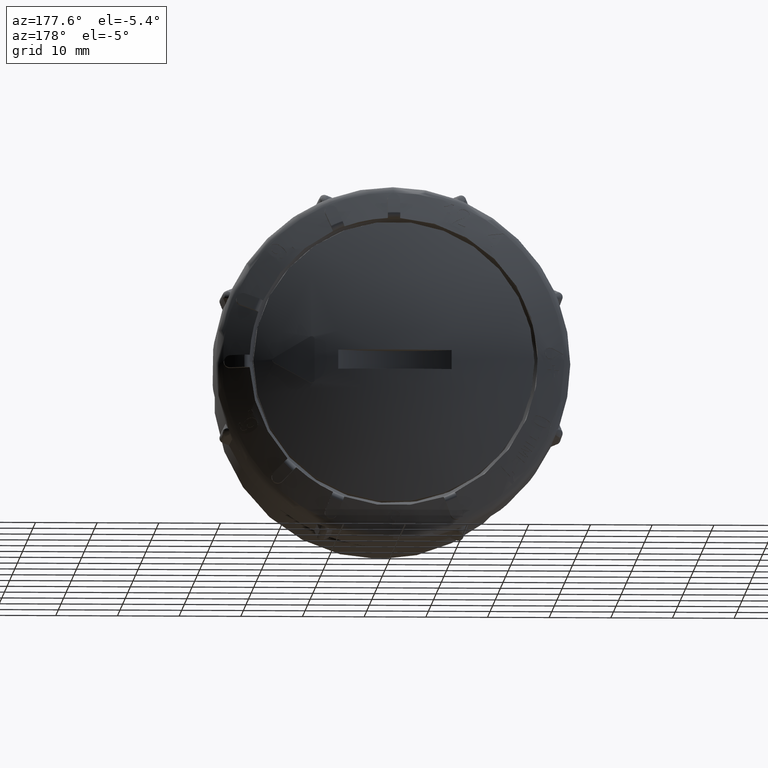
[diagram: clean part render]
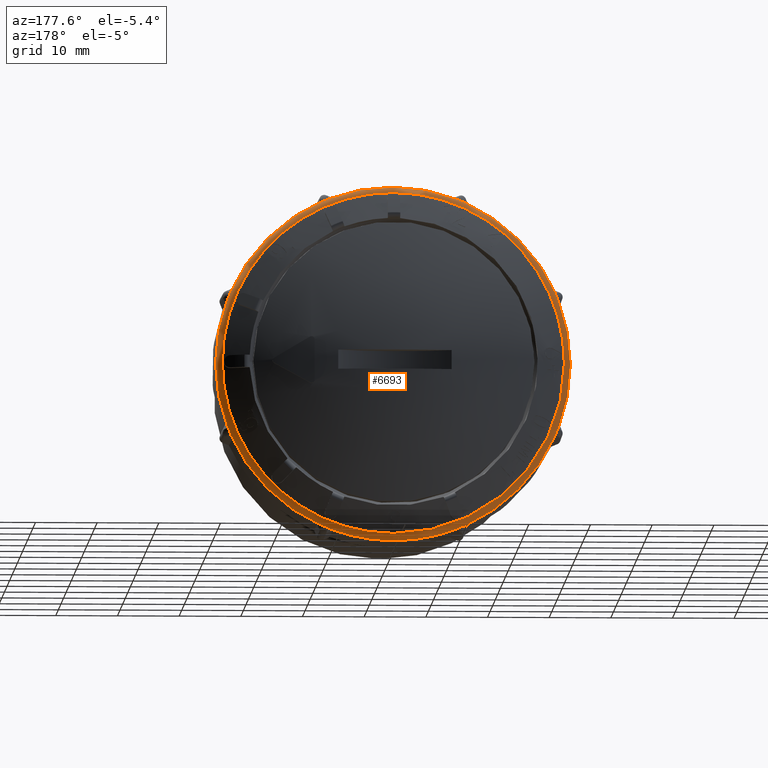
[diagram: same view with one face highlighted and labeled with its STEP entity id]
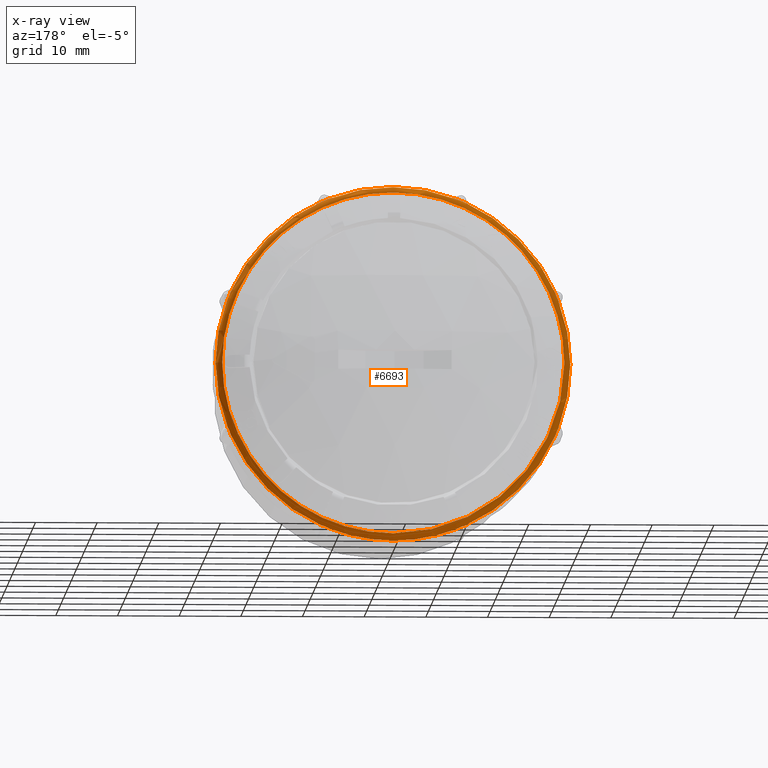
[diagram: x-ray of the same camera — body ghosted, the highlighted face saturated]
A machine part, auxiliary view. The second image highlights one B-rep face of the part: STEP entity #6693.
The next image is the same camera in x-ray: the body ghosted, the highlighted face saturated — about 0% of this face is hidden behind the body in this view.
In plain terms, the highlighted toroidal blend (fillet) surface has major radius 26.7601 mm and minor (blend) radius 2 mm.
Its self-contained STEP definition (entity closure, byte-faithful):
#196=TOROIDAL_SURFACE('',#7155,26.7601105933538,2.);
#1189=B_SPLINE_CURVE_WITH_KNOTS('',3,(#9656,#9657,#9658,#9659),
 .UNSPECIFIED.,.F.,.F.,(4,4),(0.,0.0148336896084148),.UNSPECIFIED.);
#1192=B_SPLINE_CURVE_WITH_KNOTS('',3,(#9689,#9690,#9691,#9692),
 .UNSPECIFIED.,.F.,.F.,(4,4),(3.32630750581756E-9,0.0148337531180695),
 .UNSPECIFIED.);
#1193=B_SPLINE_CURVE_WITH_KNOTS('',3,(#9702,#9703,#9704,#9705,#9706,#9707,
#9708,#9709,#9710,#9711,#9712,#9713),.UNSPECIFIED.,.F.,.F.,(4,2,2,2,2,4),
(0.,0.0320370428658661,0.0611745080788965,0.0891347805985909,0.108909685014162,
0.128834282042833),.UNSPECIFIED.);
#1195=B_SPLINE_CURVE_WITH_KNOTS('',3,(#9751,#9752,#9753,#9754),
 .UNSPECIFIED.,.F.,.F.,(4,4),(0.,0.0148336896083818),.UNSPECIFIED.);
#1198=B_SPLINE_CURVE_WITH_KNOTS('',3,(#9784,#9785,#9786,#9787),
 .UNSPECIFIED.,.F.,.F.,(4,4),(3.32630734475786E-9,0.0148337531179887),
 .UNSPECIFIED.);
#1199=B_SPLINE_CURVE_WITH_KNOTS('',3,(#9797,#9798,#9799,#9800,#9801,#9802,
#9803,#9804,#9805,#9806,#9807,#9808),.UNSPECIFIED.,.F.,.F.,(4,2,2,2,2,4),
(0.,0.0320370428658694,0.0611745080789084,0.0891347805986136,0.108909685014187,
0.128834282042854),.UNSPECIFIED.);
#1201=B_SPLINE_CURVE_WITH_KNOTS('',3,(#9846,#9847,#9848,#9849),
 .UNSPECIFIED.,.F.,.F.,(4,4),(0.,0.0148336896083872),.UNSPECIFIED.);
#1204=B_SPLINE_CURVE_WITH_KNOTS('',3,(#9879,#9880,#9881,#9882),
 .UNSPECIFIED.,.F.,.F.,(4,4),(3.32630671073734E-9,0.0148337531181456),
 .UNSPECIFIED.);
#1205=B_SPLINE_CURVE_WITH_KNOTS('',3,(#9892,#9893,#9894,#9895,#9896,#9897,
#9898,#9899,#9900,#9901,#9902,#9903),.UNSPECIFIED.,.F.,.F.,(4,2,2,2,2,4),
(0.,0.032037042865868,0.0611745080789088,0.0891347805986176,0.108909685014197,
0.128834282042868),.UNSPECIFIED.);
#1207=B_SPLINE_CURVE_WITH_KNOTS('',3,(#9941,#9942,#9943,#9944),
 .UNSPECIFIED.,.F.,.F.,(4,4),(0.,0.0148336896083754),.UNSPECIFIED.);
#1210=B_SPLINE_CURVE_WITH_KNOTS('',3,(#9974,#9975,#9976,#9977),
 .UNSPECIFIED.,.F.,.F.,(4,4),(3.32630661955745E-9,0.0148337531180443),
 .UNSPECIFIED.);
#1211=B_SPLINE_CURVE_WITH_KNOTS('',3,(#9987,#9988,#9989,#9990,#9991,#9992,
#9993,#9994,#9995,#9996,#9997,#9998),.UNSPECIFIED.,.F.,.F.,(4,2,2,2,2,4),
(0.,0.0320370428658693,0.061174508078909,0.0891347805986124,0.108909685014185,
0.128834282042856),.UNSPECIFIED.);
#1213=B_SPLINE_CURVE_WITH_KNOTS('',3,(#10036,#10037,#10038,#10039),
 .UNSPECIFIED.,.F.,.F.,(4,4),(0.,0.0148336896083804),.UNSPECIFIED.);
#1216=B_SPLINE_CURVE_WITH_KNOTS('',3,(#10069,#10070,#10071,#10072),
 .UNSPECIFIED.,.F.,.F.,(4,4),(3.32630674917658E-9,0.0148337531182227),
 .UNSPECIFIED.);
#1217=B_SPLINE_CURVE_WITH_KNOTS('',3,(#10082,#10083,#10084,#10085,#10086,
#10087,#10088,#10089,#10090,#10091,#10092,#10093),.UNSPECIFIED.,.F.,.F.,
(4,2,2,2,2,4),(0.,0.0320370428658679,0.0611745080789059,0.0891347805986127,
0.108909685014194,0.128834282042867),.UNSPECIFIED.);
#1219=B_SPLINE_CURVE_WITH_KNOTS('',3,(#10131,#10132,#10133,#10134),
 .UNSPECIFIED.,.F.,.F.,(4,4),(0.,0.0148336896084047),.UNSPECIFIED.);
#1222=B_SPLINE_CURVE_WITH_KNOTS('',3,(#10164,#10165,#10166,#10167),
 .UNSPECIFIED.,.F.,.F.,(4,4),(3.32630662356984E-9,0.0148337531180015),
 .UNSPECIFIED.);
#1223=B_SPLINE_CURVE_WITH_KNOTS('',3,(#10177,#10178,#10179,#10180,#10181,
#10182,#10183,#10184,#10185,#10186,#10187,#10188),.UNSPECIFIED.,.F.,.F.,
(4,2,2,2,2,4),(0.,0.0320370428658676,0.0611745080789006,0.0891347805986003,
0.108909685014174,0.128834282042842),.UNSPECIFIED.);
#1225=B_SPLINE_CURVE_WITH_KNOTS('',3,(#10226,#10227,#10228,#10229),
 .UNSPECIFIED.,.F.,.F.,(4,4),(0.,0.0148336896083799),.UNSPECIFIED.);
#1228=B_SPLINE_CURVE_WITH_KNOTS('',3,(#10259,#10260,#10261,#10262),
 .UNSPECIFIED.,.F.,.F.,(4,4),(3.32630684854577E-9,0.0148337531181848),
 .UNSPECIFIED.);
#1229=B_SPLINE_CURVE_WITH_KNOTS('',3,(#10272,#10273,#10274,#10275,#10276,
#10277,#10278,#10279,#10280,#10281,#10282,#10283),.UNSPECIFIED.,.F.,.F.,
(4,2,2,2,2,4),(0.,0.0320370428658662,0.0611745080789064,0.0891347805986128,
0.10890968501419,0.128834282042863),.UNSPECIFIED.);
#1235=B_SPLINE_CURVE_WITH_KNOTS('',3,(#10402,#10403,#10404,#10405),
 .UNSPECIFIED.,.F.,.F.,(4,4),(0.,0.0148337497913587),.UNSPECIFIED.);
#1236=B_SPLINE_CURVE_WITH_KNOTS('',3,(#10407,#10408,#10409,#10410,#10411,
#10412,#10413,#10414,#10415,#10416,#10417,#10418),.UNSPECIFIED.,.F.,.F.,
(4,2,2,2,2,4),(0.,0.0320370428658675,0.0611745080789003,0.0891347805985978,
0.108909685014166,0.128834282042829),.UNSPECIFIED.);
#1237=B_SPLINE_CURVE_WITH_KNOTS('',3,(#10419,#10420,#10421,#10422),
 .UNSPECIFIED.,.F.,.F.,(4,4),(0.,0.0148336896078785),.UNSPECIFIED.);
#1637=FACE_OUTER_BOUND('',#2014,.T.);
#2014=EDGE_LOOP('',(#4827,#4828,#4829,#4830,#4831,#4832,#4833,#4834,#4835,
#4836,#4837,#4838,#4839,#4840,#4841,#4842,#4843,#4844,#4845,#4846,#4847,
#4848,#4849,#4850,#4851,#4852,#4853,#4854,#4855,#4856,#4857,#4858,#4859,
#4860,#4861,#4862,#4863));
#2418=CIRCLE('',#7138,28.7600344394821);
#2419=CIRCLE('',#7140,28.7600344394821);
#2420=CIRCLE('',#7142,28.7600344394821);
#2421=CIRCLE('',#7144,28.7600344394821);
#2422=CIRCLE('',#7146,28.7600344394821);
#2423=CIRCLE('',#7148,28.7600344394821);
#2425=CIRCLE('',#7151,28.7600344394821);
#2426=CIRCLE('',#7152,28.7600344394821);
#2427=CIRCLE('',#7154,28.7600344394821);
#2428=CIRCLE('',#7156,27.7332055240212);
#2429=CIRCLE('',#7157,2.);
#2430=CIRCLE('',#7158,27.7332055240212);
#2790=VERTEX_POINT('',#9643);
#2792=VERTEX_POINT('',#9655);
#2794=VERTEX_POINT('',#9672);
#2797=VERTEX_POINT('',#9687);
#2800=VERTEX_POINT('',#9738);
#2802=VERTEX_POINT('',#9750);
#2804=VERTEX_POINT('',#9767);
#2807=VERTEX_POINT('',#9782);
#2810=VERTEX_POINT('',#9833);
#2812=VERTEX_POINT('',#9845);
#2814=VERTEX_POINT('',#9862);
#2817=VERTEX_POINT('',#9877);
#2820=VERTEX_POINT('',#9928);
#2822=VERTEX_POINT('',#9940);
#2824=VERTEX_POINT('',#9957);
#2827=VERTEX_POINT('',#9972);
#2830=VERTEX_POINT('',#10023);
#2832=VERTEX_POINT('',#10035);
#2834=VERTEX_POINT('',#10052);
#2837=VERTEX_POINT('',#10067);
#2840=VERTEX_POINT('',#10118);
#2842=VERTEX_POINT('',#10130);
#2844=VERTEX_POINT('',#10147);
#2847=VERTEX_POINT('',#10162);
#2850=VERTEX_POINT('',#10213);
#2852=VERTEX_POINT('',#10225);
#2854=VERTEX_POINT('',#10242);
#2857=VERTEX_POINT('',#10257);
#2865=VERTEX_POINT('',#10346);
#2870=VERTEX_POINT('',#10380);
#2871=VERTEX_POINT('',#10391);
#2872=VERTEX_POINT('',#10397);
#2873=VERTEX_POINT('',#10398);
#2874=VERTEX_POINT('',#10401);
#2875=VERTEX_POINT('',#10406);
#3482=EDGE_CURVE('',#2792,#2790,#1189,.T.);
#3489=EDGE_CURVE('',#2794,#2797,#1192,.T.);
#3490=EDGE_CURVE('',#2797,#2792,#1193,.T.);
#3499=EDGE_CURVE('',#2802,#2800,#1195,.T.);
#3506=EDGE_CURVE('',#2804,#2807,#1198,.T.);
#3507=EDGE_CURVE('',#2807,#2802,#1199,.T.);
#3516=EDGE_CURVE('',#2812,#2810,#1201,.T.);
#3523=EDGE_CURVE('',#2814,#2817,#1204,.T.);
#3524=EDGE_CURVE('',#2817,#2812,#1205,.T.);
#3533=EDGE_CURVE('',#2822,#2820,#1207,.T.);
#3540=EDGE_CURVE('',#2824,#2827,#1210,.T.);
#3541=EDGE_CURVE('',#2827,#2822,#1211,.T.);
#3550=EDGE_CURVE('',#2832,#2830,#1213,.T.);
#3557=EDGE_CURVE('',#2834,#2837,#1216,.T.);
#3558=EDGE_CURVE('',#2837,#2832,#1217,.T.);
#3567=EDGE_CURVE('',#2842,#2840,#1219,.T.);
#3574=EDGE_CURVE('',#2844,#2847,#1222,.T.);
#3575=EDGE_CURVE('',#2847,#2842,#1223,.T.);
#3584=EDGE_CURVE('',#2852,#2850,#1225,.T.);
#3591=EDGE_CURVE('',#2854,#2857,#1228,.T.);
#3592=EDGE_CURVE('',#2857,#2852,#1229,.T.);
#3611=EDGE_CURVE('',#2865,#2854,#2418,.T.);
#3615=EDGE_CURVE('',#2850,#2844,#2419,.T.);
#3616=EDGE_CURVE('',#2840,#2834,#2420,.T.);
#3617=EDGE_CURVE('',#2830,#2824,#2421,.T.);
#3618=EDGE_CURVE('',#2820,#2814,#2422,.T.);
#3619=EDGE_CURVE('',#2810,#2804,#2423,.T.);
#3623=EDGE_CURVE('',#2871,#2870,#2425,.T.);
#3624=EDGE_CURVE('',#2790,#2871,#2426,.T.);
#3625=EDGE_CURVE('',#2800,#2794,#2427,.T.);
#3626=EDGE_CURVE('',#2872,#2873,#2428,.T.);
#3627=EDGE_CURVE('',#2873,#2871,#2429,.T.);
#3628=EDGE_CURVE('',#2870,#2874,#1235,.T.);
#3629=EDGE_CURVE('',#2874,#2875,#1236,.T.);
#3630=EDGE_CURVE('',#2875,#2865,#1237,.T.);
#3631=EDGE_CURVE('',#2873,#2872,#2430,.T.);
#4827=ORIENTED_EDGE('',*,*,#3626,.T.);
#4828=ORIENTED_EDGE('',*,*,#3627,.T.);
#4829=ORIENTED_EDGE('',*,*,#3623,.T.);
#4830=ORIENTED_EDGE('',*,*,#3628,.T.);
#4831=ORIENTED_EDGE('',*,*,#3629,.T.);
#4832=ORIENTED_EDGE('',*,*,#3630,.T.);
#4833=ORIENTED_EDGE('',*,*,#3611,.T.);
#4834=ORIENTED_EDGE('',*,*,#3591,.T.);
#4835=ORIENTED_EDGE('',*,*,#3592,.T.);
#4836=ORIENTED_EDGE('',*,*,#3584,.T.);
#4837=ORIENTED_EDGE('',*,*,#3615,.T.);
#4838=ORIENTED_EDGE('',*,*,#3574,.T.);
#4839=ORIENTED_EDGE('',*,*,#3575,.T.);
#4840=ORIENTED_EDGE('',*,*,#3567,.T.);
#4841=ORIENTED_EDGE('',*,*,#3616,.T.);
#4842=ORIENTED_EDGE('',*,*,#3557,.T.);
#4843=ORIENTED_EDGE('',*,*,#3558,.T.);
#4844=ORIENTED_EDGE('',*,*,#3550,.T.);
#4845=ORIENTED_EDGE('',*,*,#3617,.T.);
#4846=ORIENTED_EDGE('',*,*,#3540,.T.);
#4847=ORIENTED_EDGE('',*,*,#3541,.T.);
#4848=ORIENTED_EDGE('',*,*,#3533,.T.);
#4849=ORIENTED_EDGE('',*,*,#3618,.T.);
#4850=ORIENTED_EDGE('',*,*,#3523,.T.);
#4851=ORIENTED_EDGE('',*,*,#3524,.T.);
#4852=ORIENTED_EDGE('',*,*,#3516,.T.);
#4853=ORIENTED_EDGE('',*,*,#3619,.T.);
#4854=ORIENTED_EDGE('',*,*,#3506,.T.);
#4855=ORIENTED_EDGE('',*,*,#3507,.T.);
#4856=ORIENTED_EDGE('',*,*,#3499,.T.);
#4857=ORIENTED_EDGE('',*,*,#3625,.T.);
#4858=ORIENTED_EDGE('',*,*,#3489,.T.);
#4859=ORIENTED_EDGE('',*,*,#3490,.T.);
#4860=ORIENTED_EDGE('',*,*,#3482,.T.);
#4861=ORIENTED_EDGE('',*,*,#3624,.T.);
#4862=ORIENTED_EDGE('',*,*,#3627,.F.);
#4863=ORIENTED_EDGE('',*,*,#3631,.T.);
#6693=ADVANCED_FACE('',(#1637),#196,.T.);
#7138=AXIS2_PLACEMENT_3D('',#10347,#7993,#7994);
#7140=AXIS2_PLACEMENT_3D('',#10366,#7998,#7999);
#7142=AXIS2_PLACEMENT_3D('',#10368,#8002,#8003);
#7144=AXIS2_PLACEMENT_3D('',#10370,#8006,#8007);
#7146=AXIS2_PLACEMENT_3D('',#10372,#8010,#8011);
#7148=AXIS2_PLACEMENT_3D('',#10374,#8014,#8015);
#7151=AXIS2_PLACEMENT_3D('',#10392,#8021,#8022);
#7152=AXIS2_PLACEMENT_3D('',#10393,#8023,#8024);
#7154=AXIS2_PLACEMENT_3D('',#10395,#8027,#8028);
#7155=AXIS2_PLACEMENT_3D('',#10396,#8029,#8030);
#7156=AXIS2_PLACEMENT_3D('',#10399,#8031,#8032);
#7157=AXIS2_PLACEMENT_3D('',#10400,#8033,#8034);
#7158=AXIS2_PLACEMENT_3D('',#10423,#8035,#8036);
#7993=DIRECTION('center_axis',(-3.6814030682041E-17,1.,2.31725584917116E-17));
#7994=DIRECTION('ref_axis',(1.,3.6814030682041E-17,1.11022302462516E-16));
#7998=DIRECTION('center_axis',(-3.6814030682041E-17,1.,2.31725584917116E-17));
#7999=DIRECTION('ref_axis',(1.,3.6814030682041E-17,1.11022302462516E-16));
#8002=DIRECTION('center_axis',(-3.6814030682041E-17,1.,2.31725584917116E-17));
#8003=DIRECTION('ref_axis',(1.,3.6814030682041E-17,1.11022302462516E-16));
#8006=DIRECTION('center_axis',(-3.6814030682041E-17,1.,2.31725584917116E-17));
#8007=DIRECTION('ref_axis',(1.,3.6814030682041E-17,1.11022302462516E-16));
#8010=DIRECTION('center_axis',(-3.6814030682041E-17,1.,2.31725584917116E-17));
#8011=DIRECTION('ref_axis',(1.,3.6814030682041E-17,1.11022302462516E-16));
#8014=DIRECTION('center_axis',(-3.6814030682041E-17,1.,2.31725584917116E-17));
#8015=DIRECTION('ref_axis',(1.,3.6814030682041E-17,1.11022302462516E-16));
#8021=DIRECTION('center_axis',(-3.6814030682041E-17,1.,2.31725584917116E-17));
#8022=DIRECTION('ref_axis',(1.,3.6814030682041E-17,1.11022302462516E-16));
#8023=DIRECTION('center_axis',(-3.6814030682041E-17,1.,2.31725584917116E-17));
#8024=DIRECTION('ref_axis',(1.,3.6814030682041E-17,1.11022302462516E-16));
#8027=DIRECTION('center_axis',(-3.6814030682041E-17,1.,2.31725584917116E-17));
#8028=DIRECTION('ref_axis',(1.,3.6814030682041E-17,1.11022302462516E-16));
#8029=DIRECTION('center_axis',(-3.6814030682041E-17,1.,2.31725584917116E-17));
#8030=DIRECTION('ref_axis',(-1.11022302462516E-16,0.,1.));
#8031=DIRECTION('center_axis',(3.6814030682041E-17,-1.,-2.31725584917116E-17));
#8032=DIRECTION('ref_axis',(1.,3.68140306820409E-17,2.33486982377251E-16));
#8033=DIRECTION('center_axis',(-1.,-3.6814030682041E-17,1.14423774522197E-17));
#8034=DIRECTION('ref_axis',(-1.14423774522197E-17,0.,-1.));
#8035=DIRECTION('center_axis',(3.6814030682041E-17,-1.,-2.31725584917116E-17));
#8036=DIRECTION('ref_axis',(1.,3.68140306820409E-17,2.33486982377251E-16));
#9643=CARTESIAN_POINT('',(10.3880729723535,-18.7300764011079,-26.8184175685527));
#9655=CARTESIAN_POINT('',(10.4797180795152,-18.6205103800729,-26.7784847694301));
#9656=CARTESIAN_POINT('Ctrl Pts',(10.4797180795152,-18.6205103800729,-26.7784847694301));
#9657=CARTESIAN_POINT('Ctrl Pts',(10.4496592788956,-18.6570877602609,-26.7927478471842));
#9658=CARTESIAN_POINT('Ctrl Pts',(10.4191090741495,-18.6936235598533,-26.8060546315371));
#9659=CARTESIAN_POINT('Ctrl Pts',(10.3880729723535,-18.7300764011079,-26.8184175685527));
#9672=CARTESIAN_POINT('',(11.6180080812043,-18.7300764011079,-26.3089617656279));
#9687=CARTESIAN_POINT('',(11.5249684514163,-18.6205103800729,-26.3455278893131));
#9689=CARTESIAN_POINT('Ctrl Pts',(11.6180080812043,-18.7300764011079,-26.3089617656279));
#9690=CARTESIAN_POINT('Ctrl Pts',(11.5873203265636,-18.6936235598534,-26.3221656870703));
#9691=CARTESIAN_POINT('Ctrl Pts',(11.5563087521693,-18.6570877602609,-26.3343586265612));
#9692=CARTESIAN_POINT('Ctrl Pts',(11.5249684514163,-18.6205103800729,-26.3455278893131));
#9702=CARTESIAN_POINT('Ctrl Pts',(11.5249684514163,-18.6205103800729,-26.3455278893131));
#9703=CARTESIAN_POINT('Ctrl Pts',(11.457281290635,-18.541512445967,-26.3696506853788));
#9704=CARTESIAN_POINT('Ctrl Pts',(11.3751419774724,-18.476674243408,-26.3956483258124));
#9705=CARTESIAN_POINT('Ctrl Pts',(11.2004782377847,-18.3904104089229,-26.4552156624567));
#9706=CARTESIAN_POINT('Ctrl Pts',(11.1116405980161,-18.3665934186438,-26.4873637052758));
#9707=CARTESIAN_POINT('Ctrl Pts',(10.9355612731622,-18.3580060337821,-26.5587065604925));
#9708=CARTESIAN_POINT('Ctrl Pts',(10.851267460536,-18.3718337779216,-26.5964125965186));
#9709=CARTESIAN_POINT('Ctrl Pts',(10.715819407641,-18.4241898800592,-26.6610842031567));
#9710=CARTESIAN_POINT('Ctrl Pts',(10.6630635172332,-18.4539596839432,-26.6874560868767));
#9711=CARTESIAN_POINT('Ctrl Pts',(10.5649698214638,-18.5276640867175,-26.7367050184566));
#9712=CARTESIAN_POINT('Ctrl Pts',(10.5200704566484,-18.5714071487574,-26.7593373290549));
#9713=CARTESIAN_POINT('Ctrl Pts',(10.4797180795152,-18.6205103800729,-26.7784847694301));
#9738=CARTESIAN_POINT('',(26.3089617656279,-18.7300764011079,-11.6180080812042));
#9750=CARTESIAN_POINT('',(26.3455278893131,-18.6205103800729,-11.5249684514163));
#9751=CARTESIAN_POINT('Ctrl Pts',(26.3455278893131,-18.6205103800729,-11.5249684514163));
#9752=CARTESIAN_POINT('Ctrl Pts',(26.3343586265612,-18.6570877602608,-11.5563087521691));
#9753=CARTESIAN_POINT('Ctrl Pts',(26.3221656870704,-18.6936235598532,-11.5873203265634));
#9754=CARTESIAN_POINT('Ctrl Pts',(26.3089617656279,-18.7300764011079,-11.6180080812042));
#9767=CARTESIAN_POINT('',(26.8184175685527,-18.7300764011079,-10.3880729723535));
#9782=CARTESIAN_POINT('',(26.7784847694301,-18.6205103800729,-10.4797180795152));
#9784=CARTESIAN_POINT('Ctrl Pts',(26.8184175685527,-18.7300764011079,-10.3880729723535));
#9785=CARTESIAN_POINT('Ctrl Pts',(26.8060546315372,-18.6936235598536,-10.4191090741492));
#9786=CARTESIAN_POINT('Ctrl Pts',(26.7927478471842,-18.657087760261,-10.4496592788954));
#9787=CARTESIAN_POINT('Ctrl Pts',(26.7784847694301,-18.6205103800729,-10.4797180795151));
#9797=CARTESIAN_POINT('Ctrl Pts',(26.7784847694301,-18.6205103800729,-10.4797180795151));
#9798=CARTESIAN_POINT('Ctrl Pts',(26.7476801117216,-18.541512445967,-10.5446375225821));
#9799=CARTESIAN_POINT('Ctrl Pts',(26.7079819542278,-18.476674243408,-10.6211018957668));
#9800=CARTESIAN_POINT('Ctrl Pts',(26.6265965071456,-18.3904104089229,-10.7867282782058));
#9801=CARTESIAN_POINT('Ctrl Pts',(26.5865109087199,-18.3665934186438,-10.8722780747901));
#9802=CARTESIAN_POINT('Ctrl Pts',(26.5124510408019,-18.3580060337821,-11.0472319761339));
#9803=CARTESIAN_POINT('Ctrl Pts',(26.4795085080476,-18.3718337779216,-11.1334988964197));
#9804=CARTESIAN_POINT('Ctrl Pts',(26.429462002951,-18.4241898800592,-11.2750048647243));
#9805=CARTESIAN_POINT('Ctrl Pts',(26.4108056929072,-18.4539596839432,-11.3309566503903));
#9806=CARTESIAN_POINT('Ctrl Pts',(26.3762672289233,-18.5276640867175,-11.4351436213468));
#9807=CARTESIAN_POINT('Ctrl Pts',(26.3605220438894,-18.5714071487575,-11.4828957269767));
#9808=CARTESIAN_POINT('Ctrl Pts',(26.3455278893131,-18.6205103800729,-11.5249684514163));
#9833=CARTESIAN_POINT('',(26.8184175685527,-18.7300764011079,10.3880729723535));
#9845=CARTESIAN_POINT('',(26.7784847694301,-18.6205103800729,10.4797180795152));
#9846=CARTESIAN_POINT('Ctrl Pts',(26.7784847694301,-18.6205103800729,10.4797180795152));
#9847=CARTESIAN_POINT('Ctrl Pts',(26.7927478471842,-18.6570877602608,10.4496592788956));
#9848=CARTESIAN_POINT('Ctrl Pts',(26.806054631537,-18.6936235598532,10.4191090741496));
#9849=CARTESIAN_POINT('Ctrl Pts',(26.8184175685527,-18.7300764011079,10.3880729723535));
#9862=CARTESIAN_POINT('',(26.3089617656279,-18.7300764011079,11.6180080812043));
#9877=CARTESIAN_POINT('',(26.3455278893131,-18.6205103800729,11.5249684514163));
#9879=CARTESIAN_POINT('Ctrl Pts',(26.3089617656279,-18.7300764011079,11.6180080812043));
#9880=CARTESIAN_POINT('Ctrl Pts',(26.3221656870703,-18.6936235598532,11.5873203265634));
#9881=CARTESIAN_POINT('Ctrl Pts',(26.3343586265612,-18.6570877602608,11.5563087521692));
#9882=CARTESIAN_POINT('Ctrl Pts',(26.3455278893131,-18.6205103800729,11.5249684514163));
#9892=CARTESIAN_POINT('Ctrl Pts',(26.3455278893131,-18.6205103800729,11.5249684514163));
#9893=CARTESIAN_POINT('Ctrl Pts',(26.3696506853788,-18.541512445967,11.457281290635));
#9894=CARTESIAN_POINT('Ctrl Pts',(26.3956483258124,-18.476674243408,11.3751419774724));
#9895=CARTESIAN_POINT('Ctrl Pts',(26.4552156624567,-18.3904104089229,11.2004782377846));
#9896=CARTESIAN_POINT('Ctrl Pts',(26.4873637052758,-18.3665934186438,11.1116405980161));
#9897=CARTESIAN_POINT('Ctrl Pts',(26.5587065604925,-18.3580060337821,10.9355612731622));
#9898=CARTESIAN_POINT('Ctrl Pts',(26.5964125965186,-18.3718337779216,10.851267460536));
#9899=CARTESIAN_POINT('Ctrl Pts',(26.6610842031567,-18.4241898800592,10.715819407641));
#9900=CARTESIAN_POINT('Ctrl Pts',(26.6874560868767,-18.4539596839432,10.6630635172332));
#9901=CARTESIAN_POINT('Ctrl Pts',(26.7367050184566,-18.5276640867175,10.5649698214638));
#9902=CARTESIAN_POINT('Ctrl Pts',(26.7593373290549,-18.5714071487574,10.5200704566484));
#9903=CARTESIAN_POINT('Ctrl Pts',(26.7784847694301,-18.6205103800729,10.4797180795152));
#9928=CARTESIAN_POINT('',(11.6180080812042,-18.7300764011079,26.3089617656279));
#9940=CARTESIAN_POINT('',(11.5249684514163,-18.6205103800729,26.3455278893131));
#9941=CARTESIAN_POINT('Ctrl Pts',(11.5249684514163,-18.6205103800729,26.3455278893131));
#9942=CARTESIAN_POINT('Ctrl Pts',(11.5563087521691,-18.6570877602608,26.3343586265612));
#9943=CARTESIAN_POINT('Ctrl Pts',(11.5873203265633,-18.6936235598531,26.3221656870704));
#9944=CARTESIAN_POINT('Ctrl Pts',(11.6180080812042,-18.7300764011079,26.3089617656279));
#9957=CARTESIAN_POINT('',(10.3880729723535,-18.7300764011079,26.8184175685527));
#9972=CARTESIAN_POINT('',(10.4797180795152,-18.6205103800729,26.7784847694301));
#9974=CARTESIAN_POINT('Ctrl Pts',(10.3880729723535,-18.7300764011079,26.8184175685527));
#9975=CARTESIAN_POINT('Ctrl Pts',(10.4191090741494,-18.6936235598535,26.8060546315371));
#9976=CARTESIAN_POINT('Ctrl Pts',(10.4496592788955,-18.6570877602609,26.7927478471842));
#9977=CARTESIAN_POINT('Ctrl Pts',(10.4797180795152,-18.6205103800729,26.7784847694301));
#9987=CARTESIAN_POINT('Ctrl Pts',(10.4797180795151,-18.6205103800729,26.7784847694301));
#9988=CARTESIAN_POINT('Ctrl Pts',(10.5446375225821,-18.541512445967,26.7476801117216));
#9989=CARTESIAN_POINT('Ctrl Pts',(10.6211018957668,-18.476674243408,26.7079819542278));
#9990=CARTESIAN_POINT('Ctrl Pts',(10.7867282782058,-18.3904104089229,26.6265965071456));
#9991=CARTESIAN_POINT('Ctrl Pts',(10.8722780747901,-18.3665934186438,26.5865109087199));
#9992=CARTESIAN_POINT('Ctrl Pts',(11.0472319761339,-18.3580060337821,26.5124510408019));
#9993=CARTESIAN_POINT('Ctrl Pts',(11.1334988964197,-18.3718337779216,26.4795085080476));
#9994=CARTESIAN_POINT('Ctrl Pts',(11.2750048647243,-18.4241898800593,26.429462002951));
#9995=CARTESIAN_POINT('Ctrl Pts',(11.3309566503903,-18.4539596839432,26.4108056929072));
#9996=CARTESIAN_POINT('Ctrl Pts',(11.4351436213468,-18.5276640867175,26.3762672289233));
#9997=CARTESIAN_POINT('Ctrl Pts',(11.4828957269767,-18.5714071487575,26.3605220438894));
#9998=CARTESIAN_POINT('Ctrl Pts',(11.5249684514163,-18.6205103800729,26.3455278893131));
#10023=CARTESIAN_POINT('',(-10.3880729723535,-18.7300764011079,26.8184175685527));
#10035=CARTESIAN_POINT('',(-10.4797180795152,-18.6205103800729,26.7784847694301));
#10036=CARTESIAN_POINT('Ctrl Pts',(-10.4797180795152,-18.6205103800729,
26.7784847694301));
#10037=CARTESIAN_POINT('Ctrl Pts',(-10.4496592788956,-18.6570877602608,
26.7927478471841));
#10038=CARTESIAN_POINT('Ctrl Pts',(-10.4191090741496,-18.6936235598532,
26.806054631537));
#10039=CARTESIAN_POINT('Ctrl Pts',(-10.3880729723535,-18.7300764011079,
26.8184175685527));
#10052=CARTESIAN_POINT('',(-11.6180080812043,-18.7300764011079,26.3089617656279));
#10067=CARTESIAN_POINT('',(-11.5249684514163,-18.6205103800729,26.3455278893131));
#10069=CARTESIAN_POINT('Ctrl Pts',(-11.6180080812043,-18.7300764011079,
26.3089617656279));
#10070=CARTESIAN_POINT('Ctrl Pts',(-11.5873203265633,-18.693623559853,26.3221656870704));
#10071=CARTESIAN_POINT('Ctrl Pts',(-11.5563087521691,-18.6570877602607,
26.3343586265612));
#10072=CARTESIAN_POINT('Ctrl Pts',(-11.5249684514163,-18.6205103800729,
26.3455278893131));
#10082=CARTESIAN_POINT('Ctrl Pts',(-11.5249684514163,-18.6205103800729,
26.3455278893131));
#10083=CARTESIAN_POINT('Ctrl Pts',(-11.457281290635,-18.541512445967,26.3696506853788));
#10084=CARTESIAN_POINT('Ctrl Pts',(-11.3751419774724,-18.476674243408,26.3956483258124));
#10085=CARTESIAN_POINT('Ctrl Pts',(-11.2004782377846,-18.3904104089229,
26.4552156624567));
#10086=CARTESIAN_POINT('Ctrl Pts',(-11.1116405980161,-18.3665934186438,
26.4873637052758));
#10087=CARTESIAN_POINT('Ctrl Pts',(-10.9355612731622,-18.3580060337821,
26.5587065604925));
#10088=CARTESIAN_POINT('Ctrl Pts',(-10.851267460536,-18.3718337779216,26.5964125965187));
#10089=CARTESIAN_POINT('Ctrl Pts',(-10.715819407641,-18.4241898800592,26.6610842031567));
#10090=CARTESIAN_POINT('Ctrl Pts',(-10.6630635172332,-18.4539596839432,
26.6874560868767));
#10091=CARTESIAN_POINT('Ctrl Pts',(-10.5649698214638,-18.5276640867175,
26.7367050184566));
#10092=CARTESIAN_POINT('Ctrl Pts',(-10.5200704566484,-18.5714071487574,
26.7593373290549));
#10093=CARTESIAN_POINT('Ctrl Pts',(-10.4797180795152,-18.6205103800729,
26.7784847694301));
#10118=CARTESIAN_POINT('',(-26.3089617656279,-18.7300764011079,11.6180080812042));
#10130=CARTESIAN_POINT('',(-26.3455278893131,-18.6205103800729,11.5249684514163));
#10131=CARTESIAN_POINT('Ctrl Pts',(-26.3455278893131,-18.6205103800729,
11.5249684514163));
#10132=CARTESIAN_POINT('Ctrl Pts',(-26.3343586265612,-18.6570877602609,
11.5563087521692));
#10133=CARTESIAN_POINT('Ctrl Pts',(-26.3221656870703,-18.6936235598533,
11.5873203265635));
#10134=CARTESIAN_POINT('Ctrl Pts',(-26.3089617656279,-18.7300764011079,
11.6180080812042));
#10147=CARTESIAN_POINT('',(-26.8184175685527,-18.7300764011079,10.3880729723535));
#10162=CARTESIAN_POINT('',(-26.7784847694301,-18.6205103800729,10.4797180795152));
#10164=CARTESIAN_POINT('Ctrl Pts',(-26.8184175685527,-18.7300764011079,
10.3880729723535));
#10165=CARTESIAN_POINT('Ctrl Pts',(-26.8060546315371,-18.6936235598536,
10.4191090741493));
#10166=CARTESIAN_POINT('Ctrl Pts',(-26.7927478471842,-18.657087760261,10.4496592788954));
#10167=CARTESIAN_POINT('Ctrl Pts',(-26.7784847694301,-18.6205103800729,
10.4797180795151));
#10177=CARTESIAN_POINT('Ctrl Pts',(-26.7784847694301,-18.6205103800729,
10.4797180795151));
#10178=CARTESIAN_POINT('Ctrl Pts',(-26.7476801117216,-18.541512445967,10.5446375225821));
#10179=CARTESIAN_POINT('Ctrl Pts',(-26.7079819542278,-18.476674243408,10.6211018957668));
#10180=CARTESIAN_POINT('Ctrl Pts',(-26.6265965071456,-18.3904104089229,
10.7867282782058));
#10181=CARTESIAN_POINT('Ctrl Pts',(-26.5865109087199,-18.3665934186438,
10.87227807479));
#10182=CARTESIAN_POINT('Ctrl Pts',(-26.5124510408019,-18.3580060337821,
11.0472319761339));
#10183=CARTESIAN_POINT('Ctrl Pts',(-26.4795085080476,-18.3718337779216,
11.1334988964197));
#10184=CARTESIAN_POINT('Ctrl Pts',(-26.429462002951,-18.4241898800593,11.2750048647243));
#10185=CARTESIAN_POINT('Ctrl Pts',(-26.4108056929072,-18.4539596839432,
11.3309566503903));
#10186=CARTESIAN_POINT('Ctrl Pts',(-26.3762672289233,-18.5276640867175,
11.4351436213468));
#10187=CARTESIAN_POINT('Ctrl Pts',(-26.3605220438894,-18.5714071487575,
11.4828957269767));
#10188=CARTESIAN_POINT('Ctrl Pts',(-26.3455278893131,-18.6205103800729,
11.5249684514163));
#10213=CARTESIAN_POINT('',(-26.8184175685527,-18.7300764011079,-10.3880729723535));
#10225=CARTESIAN_POINT('',(-26.7784847694301,-18.6205103800729,-10.4797180795152));
#10226=CARTESIAN_POINT('Ctrl Pts',(-26.7784847694301,-18.6205103800729,
-10.4797180795152));
#10227=CARTESIAN_POINT('Ctrl Pts',(-26.7927478471841,-18.6570877602608,
-10.4496592788956));
#10228=CARTESIAN_POINT('Ctrl Pts',(-26.806054631537,-18.6936235598531,-10.4191090741496));
#10229=CARTESIAN_POINT('Ctrl Pts',(-26.8184175685527,-18.7300764011079,
-10.3880729723535));
#10242=CARTESIAN_POINT('',(-26.3089617656279,-18.7300764011079,-11.6180080812043));
#10257=CARTESIAN_POINT('',(-26.3455278893131,-18.6205103800729,-11.5249684514163));
#10259=CARTESIAN_POINT('Ctrl Pts',(-26.3089617656279,-18.7300764011079,
-11.6180080812043));
#10260=CARTESIAN_POINT('Ctrl Pts',(-26.3221656870704,-18.6936235598531,
-11.5873203265634));
#10261=CARTESIAN_POINT('Ctrl Pts',(-26.3343586265612,-18.6570877602608,
-11.5563087521692));
#10262=CARTESIAN_POINT('Ctrl Pts',(-26.3455278893131,-18.6205103800729,
-11.5249684514163));
#10272=CARTESIAN_POINT('Ctrl Pts',(-26.3455278893131,-18.6205103800729,
-11.5249684514163));
#10273=CARTESIAN_POINT('Ctrl Pts',(-26.3696506853788,-18.541512445967,-11.457281290635));
#10274=CARTESIAN_POINT('Ctrl Pts',(-26.3956483258124,-18.476674243408,-11.3751419774724));
#10275=CARTESIAN_POINT('Ctrl Pts',(-26.4552156624567,-18.3904104089229,
-11.2004782377846));
#10276=CARTESIAN_POINT('Ctrl Pts',(-26.4873637052758,-18.3665934186438,
-11.1116405980161));
#10277=CARTESIAN_POINT('Ctrl Pts',(-26.5587065604925,-18.3580060337821,
-10.9355612731622));
#10278=CARTESIAN_POINT('Ctrl Pts',(-26.5964125965186,-18.3718337779216,
-10.851267460536));
#10279=CARTESIAN_POINT('Ctrl Pts',(-26.6610842031567,-18.4241898800592,
-10.715819407641));
#10280=CARTESIAN_POINT('Ctrl Pts',(-26.6874560868768,-18.4539596839432,
-10.6630635172332));
#10281=CARTESIAN_POINT('Ctrl Pts',(-26.7367050184566,-18.5276640867175,
-10.5649698214638));
#10282=CARTESIAN_POINT('Ctrl Pts',(-26.7593373290549,-18.5714071487574,
-10.5200704566484));
#10283=CARTESIAN_POINT('Ctrl Pts',(-26.7784847694301,-18.6205103800729,
-10.4797180795152));
#10346=CARTESIAN_POINT('',(-11.6180080812042,-18.7300764011079,-26.3089617656279));
#10347=CARTESIAN_POINT('Origin',(6.88624950722016E-16,-18.7300764011079,
-4.65148886904796E-15));
#10366=CARTESIAN_POINT('Origin',(6.88624950722016E-16,-18.7300764011079,
-4.65148886904796E-15));
#10368=CARTESIAN_POINT('Origin',(6.88624950722016E-16,-18.7300764011079,
-4.65148886904796E-15));
#10370=CARTESIAN_POINT('Origin',(6.88624950722016E-16,-18.7300764011079,
-4.65148886904796E-15));
#10372=CARTESIAN_POINT('Origin',(6.88624950722016E-16,-18.7300764011079,
-4.65148886904796E-15));
#10374=CARTESIAN_POINT('Origin',(6.88624950722016E-16,-18.7300764011079,
-4.65148886904796E-15));
#10380=CARTESIAN_POINT('',(-10.3880729723535,-18.7300764011079,-26.8184175685528));
#10391=CARTESIAN_POINT('',(3.59541781126623E-16,-18.7300764011079,-28.7600344394822));
#10392=CARTESIAN_POINT('Origin',(6.88624950722016E-16,-18.7300764011079,
-4.65148886904796E-15));
#10393=CARTESIAN_POINT('Origin',(6.88624950722016E-16,-18.7300764011079,
-4.65148886904796E-15));
#10395=CARTESIAN_POINT('Origin',(6.88624950722016E-16,-18.7300764011079,
-4.65148886904796E-15));
#10396=CARTESIAN_POINT('Origin',(6.89267468613186E-16,-18.7475294721046,
-1.12980488938855E-15));
#10397=CARTESIAN_POINT('',(-27.7332055240212,-17.0002211833618,-1.09609958928252E-14));
#10398=CARTESIAN_POINT('',(3.07608202094589E-16,-17.0002211833618,-27.7332055240212));
#10399=CARTESIAN_POINT('Origin',(6.24942007660424E-16,-17.0002211833618,
-1.0893152858646E-15));
#10400=CARTESIAN_POINT('Origin',(3.83068182540889E-16,-18.7475294721046,
-26.7601105933538));
#10401=CARTESIAN_POINT('',(-10.4797180795152,-18.6205103800729,-26.7784847694301));
#10402=CARTESIAN_POINT('Ctrl Pts',(-10.3880729723535,-18.7300764011079,
-26.8184175685527));
#10403=CARTESIAN_POINT('Ctrl Pts',(-10.4191090671891,-18.6936235680285,
-26.8060546343097));
#10404=CARTESIAN_POINT('Ctrl Pts',(-10.4496592856371,-18.6570877520574,
-26.7927478439853));
#10405=CARTESIAN_POINT('Ctrl Pts',(-10.4797180795152,-18.6205103800729,
-26.7784847694301));
#10406=CARTESIAN_POINT('',(-11.5249684514163,-18.6205103800729,-26.3455278893131));
#10407=CARTESIAN_POINT('Ctrl Pts',(-10.4797180795151,-18.6205103800729,
-26.7784847694301));
#10408=CARTESIAN_POINT('Ctrl Pts',(-10.5446375225821,-18.541512445967,-26.7476801117216));
#10409=CARTESIAN_POINT('Ctrl Pts',(-10.6211018957668,-18.476674243408,-26.7079819542278));
#10410=CARTESIAN_POINT('Ctrl Pts',(-10.7867282782058,-18.3904104089229,
-26.6265965071456));
#10411=CARTESIAN_POINT('Ctrl Pts',(-10.87227807479,-18.3665934186438,-26.5865109087199));
#10412=CARTESIAN_POINT('Ctrl Pts',(-11.0472319761339,-18.3580060337821,
-26.5124510408019));
#10413=CARTESIAN_POINT('Ctrl Pts',(-11.1334988964197,-18.3718337779216,
-26.4795085080476));
#10414=CARTESIAN_POINT('Ctrl Pts',(-11.2750048647243,-18.4241898800592,
-26.429462002951));
#10415=CARTESIAN_POINT('Ctrl Pts',(-11.3309566503903,-18.4539596839432,
-26.4108056929072));
#10416=CARTESIAN_POINT('Ctrl Pts',(-11.4351436213468,-18.5276640867175,
-26.3762672289233));
#10417=CARTESIAN_POINT('Ctrl Pts',(-11.4828957269768,-18.5714071487575,
-26.3605220438894));
#10418=CARTESIAN_POINT('Ctrl Pts',(-11.5249684514163,-18.6205103800729,
-26.3455278893131));
#10419=CARTESIAN_POINT('Ctrl Pts',(-11.5249684514163,-18.6205103800729,
-26.3455278893131));
#10420=CARTESIAN_POINT('Ctrl Pts',(-11.5563087451404,-18.6570877520575,
-26.3343586290662));
#10421=CARTESIAN_POINT('Ctrl Pts',(-11.5873203334459,-18.6936235680287,
-26.322165684109));
#10422=CARTESIAN_POINT('Ctrl Pts',(-11.6180080812042,-18.7300764011079,
-26.3089617656279));
#10423=CARTESIAN_POINT('Origin',(6.24942007660424E-16,-17.0002211833618,
-1.0893152858646E-15));